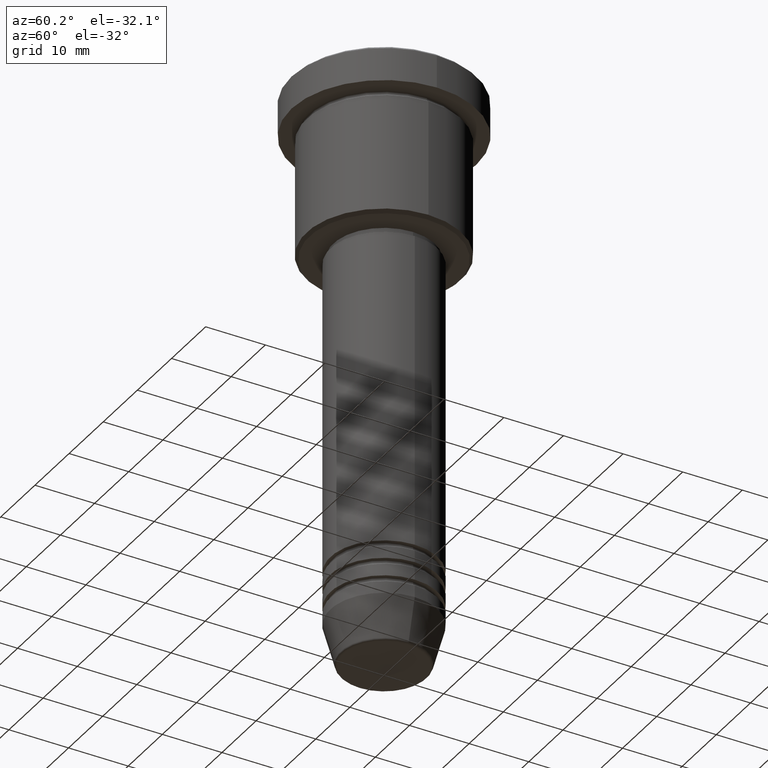
[diagram: clean part render]
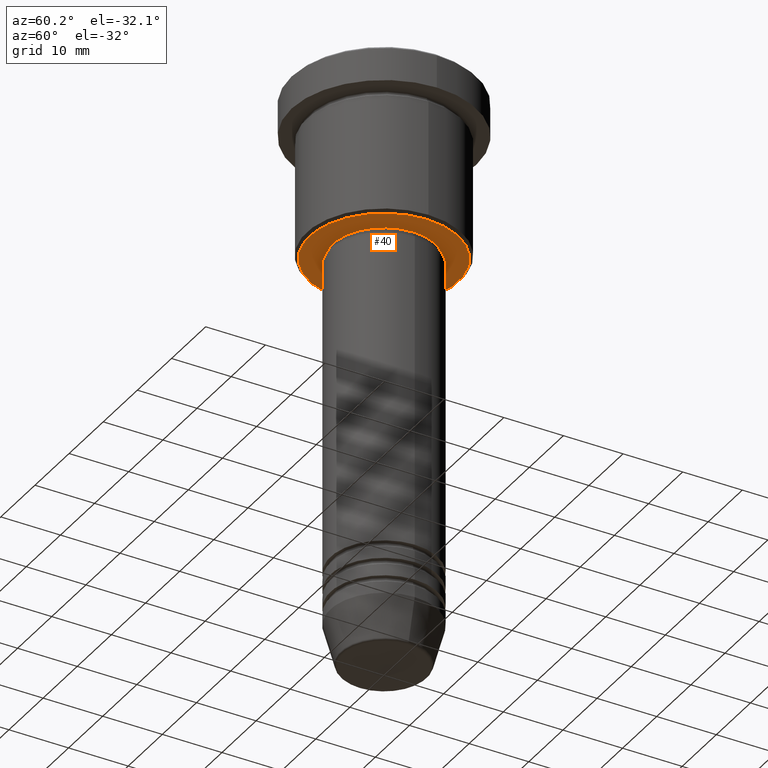
[diagram: same view with one face highlighted and labeled with its STEP entity id]
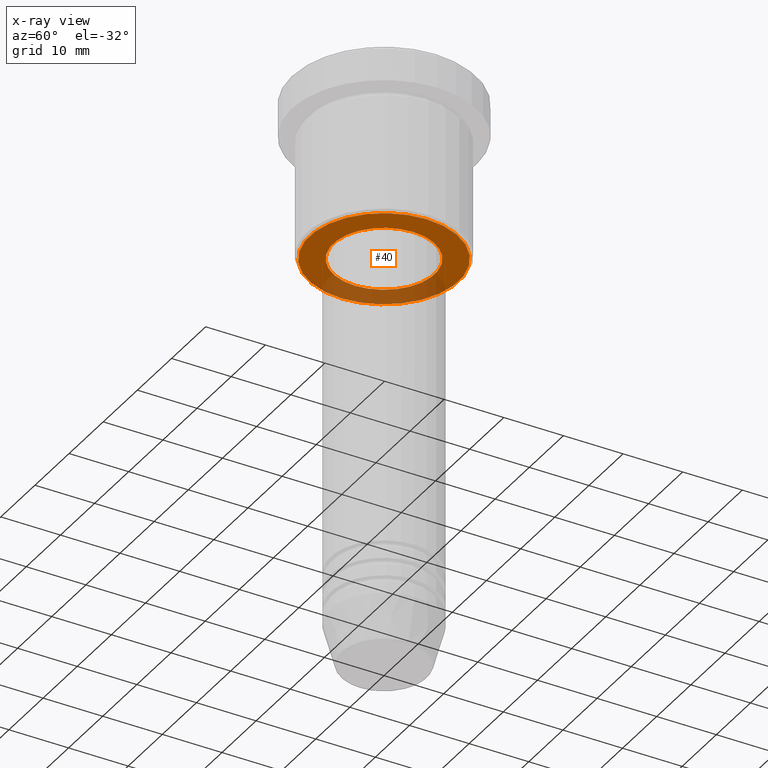
[diagram: x-ray of the same camera — body ghosted, the highlighted face saturated]
A machine part, auxiliary view. The second image highlights one B-rep face of the part: STEP entity #40.
The next image is the same camera in x-ray: the body ghosted, the highlighted face saturated — about 30% of this face is hidden behind the body in this view.
In plain terms, the highlighted planar face has unit normal (0, 0, -1).
Its self-contained STEP definition (entity closure, byte-faithful):
#5 = DIRECTION ( 'NONE',  ( -0.000000000000000000, -0.000000000000000000, 1.000000000000000000 ) ) ;
#37 = CIRCLE ( 'NONE', #518, 8.499999999999998224 ) ;
#40 = ADVANCED_FACE ( 'NONE', ( #822, #549 ), #1168, .T. ) ;
#132 = AXIS2_PLACEMENT_3D ( 'NONE', #459, #818, #359 ) ;
#154 = CIRCLE ( 'NONE', #624, 8.499999999999998224 ) ;
#266 = CARTESIAN_POINT ( 'NONE',  ( -12.49999999999996980, 1.561424668912873336E-15, -26.99999999999999645 ) ) ;
#352 = AXIS2_PLACEMENT_3D ( 'NONE', #400, #762, #1041 ) ;
#357 = CARTESIAN_POINT ( 'NONE',  ( -8.499999999999998224, 1.040949779275249943E-15, -27.00000000000000000 ) ) ;
#359 = DIRECTION ( 'NONE',  ( -1.000000000000000000, 0.000000000000000000, -0.000000000000000000 ) ) ;
#360 = DIRECTION ( 'NONE',  ( 1.000000000000000000, 0.000000000000000000, 0.000000000000000000 ) ) ;
#400 = CARTESIAN_POINT ( 'NONE',  ( 0.000000000000000000, 0.000000000000000000, -26.99999999999999645 ) ) ;
#416 = EDGE_CURVE ( 'NONE', #654, #768, #667, .T. ) ;
#459 = CARTESIAN_POINT ( 'NONE',  ( 0.000000000000000000, 13.00000000000000000, -26.99999999999999645 ) ) ;
#467 = CARTESIAN_POINT ( 'NONE',  ( 12.49999999999996980, 0.000000000000000000, -26.99999999999999645 ) ) ;
#499 = AXIS2_PLACEMENT_3D ( 'NONE', #570, #836, #841 ) ;
#518 = AXIS2_PLACEMENT_3D ( 'NONE', #550, #5, #360 ) ;
#522 = DIRECTION ( 'NONE',  ( -0.000000000000000000, -0.000000000000000000, 1.000000000000000000 ) ) ;
#548 = VERTEX_POINT ( 'NONE', #357 ) ;
#549 = FACE_BOUND ( 'NONE', #676, .T. ) ;
#550 = CARTESIAN_POINT ( 'NONE',  ( 0.000000000000000000, 0.000000000000000000, -27.00000000000000000 ) ) ;
#567 = VERTEX_POINT ( 'NONE', #634 ) ;
#570 = CARTESIAN_POINT ( 'NONE',  ( 0.000000000000000000, 0.000000000000000000, -26.99999999999999645 ) ) ;
#624 = AXIS2_PLACEMENT_3D ( 'NONE', #854, #522, #857 ) ;
#634 = CARTESIAN_POINT ( 'NONE',  ( 8.499999999999998224, 0.000000000000000000, -27.00000000000000000 ) ) ;
#650 = ORIENTED_EDGE ( 'NONE', *, *, #416, .T. ) ;
#654 = VERTEX_POINT ( 'NONE', #266 ) ;
#667 = CIRCLE ( 'NONE', #499, 12.49999999999996980 ) ;
#676 = EDGE_LOOP ( 'NONE', ( #915, #1096 ) ) ;
#707 = EDGE_CURVE ( 'NONE', #567, #548, #37, .T. ) ;
#721 = CIRCLE ( 'NONE', #352, 12.49999999999996980 ) ;
#756 = EDGE_LOOP ( 'NONE', ( #942, #650 ) ) ;
#762 = DIRECTION ( 'NONE',  ( 0.000000000000000000, 0.000000000000000000, -1.000000000000000000 ) ) ;
#768 = VERTEX_POINT ( 'NONE', #467 ) ;
#818 = DIRECTION ( 'NONE',  ( 0.000000000000000000, 0.000000000000000000, -1.000000000000000000 ) ) ;
#822 = FACE_OUTER_BOUND ( 'NONE', #756, .T. ) ;
#836 = DIRECTION ( 'NONE',  ( 0.000000000000000000, 0.000000000000000000, -1.000000000000000000 ) ) ;
#841 = DIRECTION ( 'NONE',  ( -1.000000000000000000, 0.000000000000000000, 0.000000000000000000 ) ) ;
#854 = CARTESIAN_POINT ( 'NONE',  ( 0.000000000000000000, 0.000000000000000000, -27.00000000000000000 ) ) ;
#857 = DIRECTION ( 'NONE',  ( 1.000000000000000000, 0.000000000000000000, 0.000000000000000000 ) ) ;
#915 = ORIENTED_EDGE ( 'NONE', *, *, #707, .T. ) ;
#942 = ORIENTED_EDGE ( 'NONE', *, *, #1120, .T. ) ;
#1010 = EDGE_CURVE ( 'NONE', #548, #567, #154, .T. ) ;
#1041 = DIRECTION ( 'NONE',  ( -1.000000000000000000, 0.000000000000000000, 0.000000000000000000 ) ) ;
#1096 = ORIENTED_EDGE ( 'NONE', *, *, #1010, .T. ) ;
#1120 = EDGE_CURVE ( 'NONE', #768, #654, #721, .T. ) ;
#1168 = PLANE ( 'NONE',  #132 ) ;